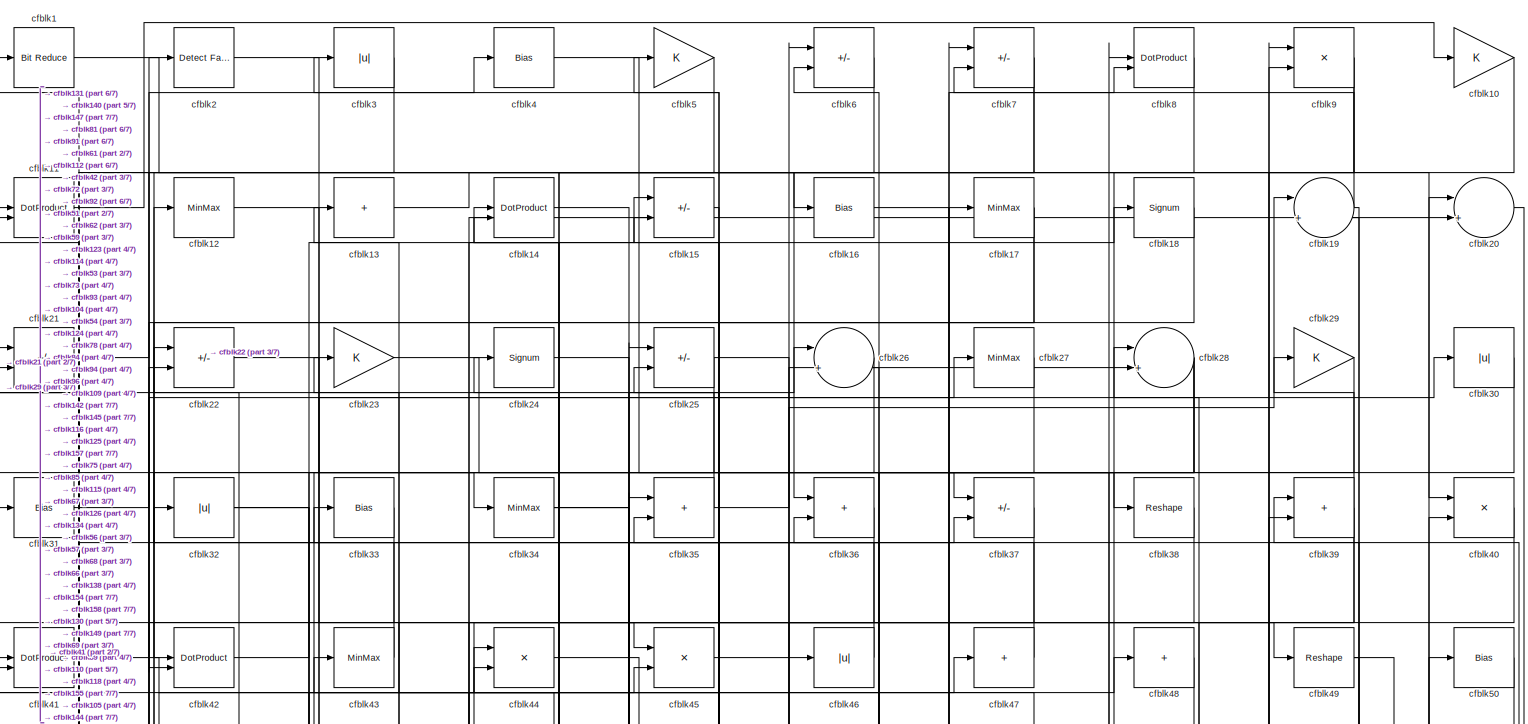
[diagram: root canvas - part 1/7, full width, top band]
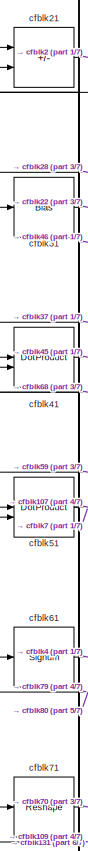
[diagram: root canvas - part 2/7, top left region]
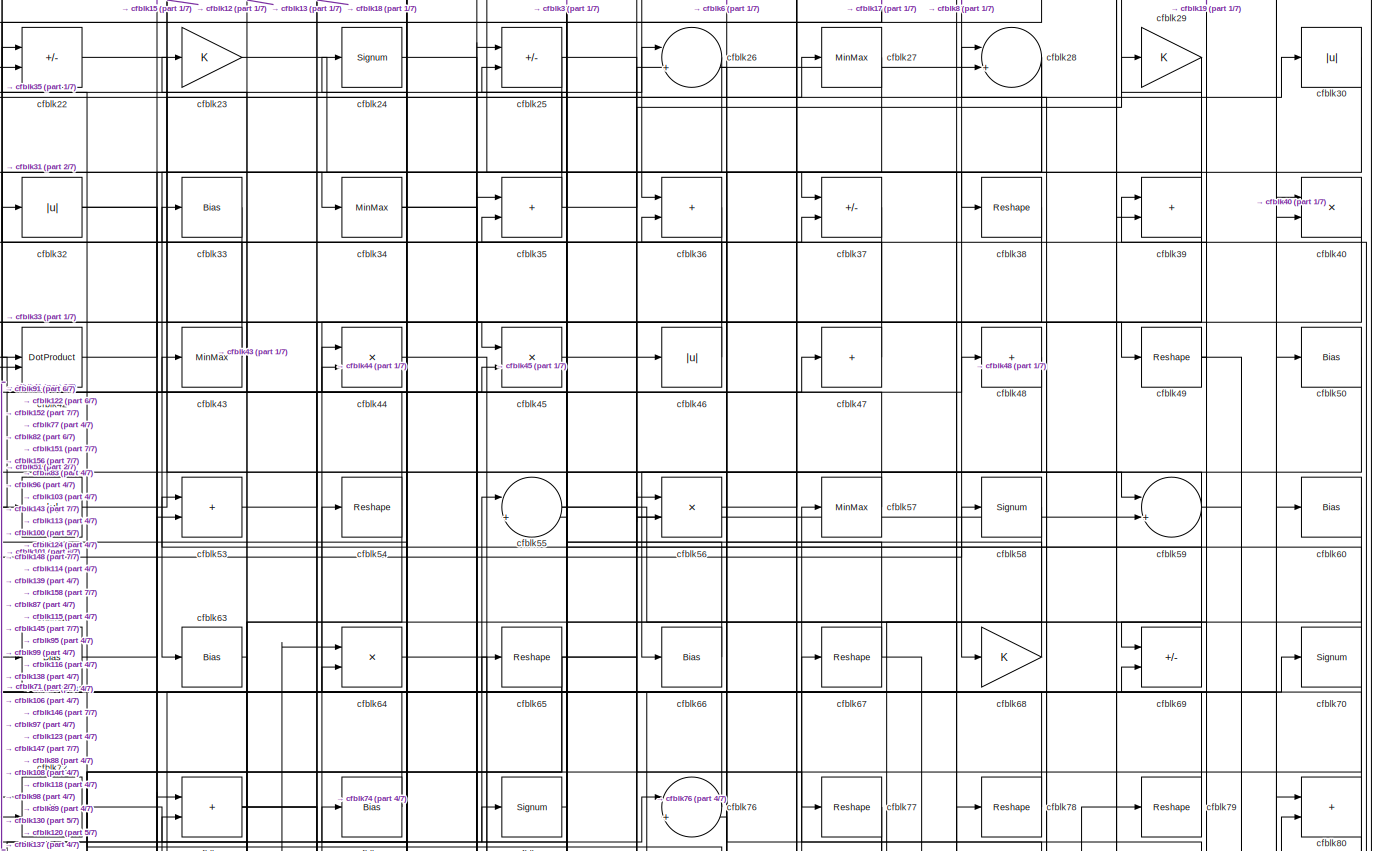
[diagram: root canvas - part 3/7, full width, top band]
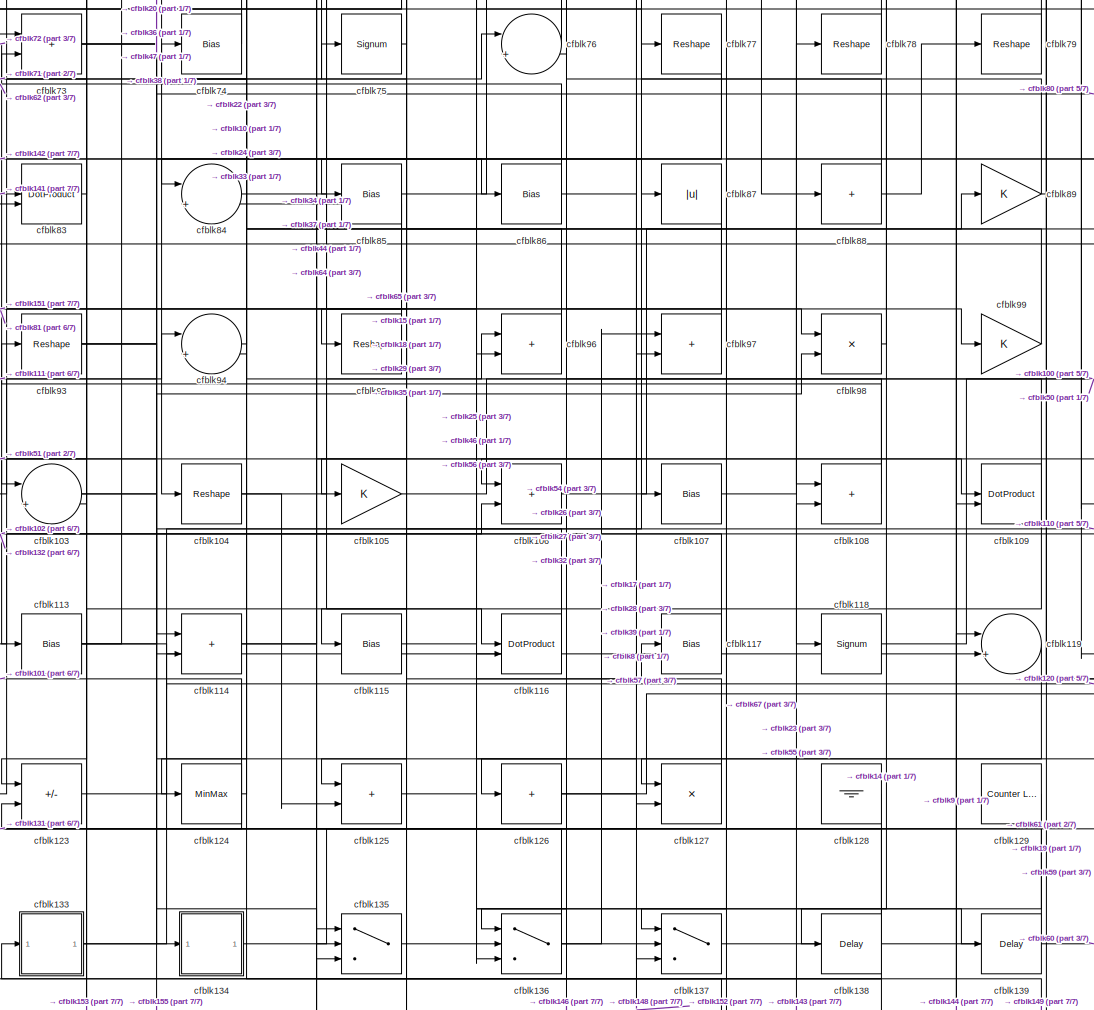
[diagram: root canvas - part 4/7, central region]
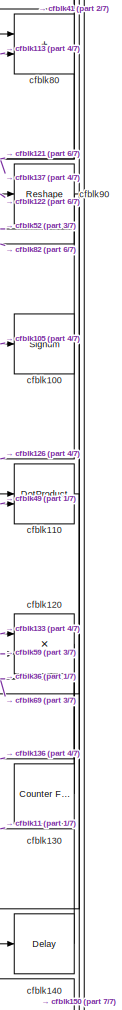
[diagram: root canvas - part 5/7, middle right region]
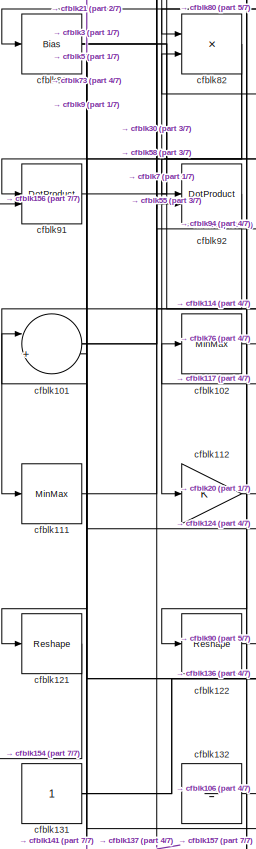
[diagram: root canvas - part 6/7, bottom left region]
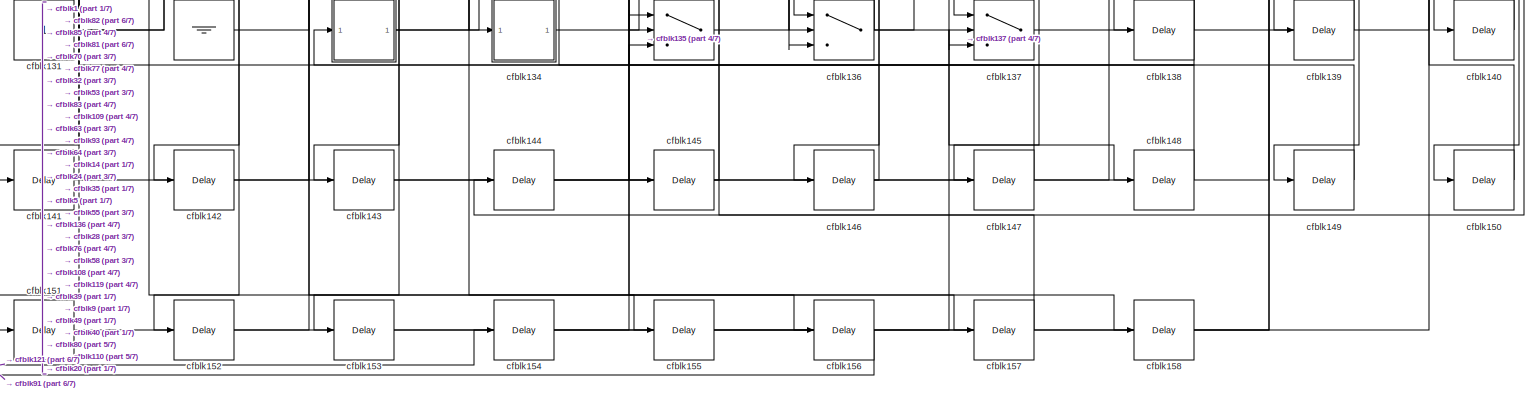
[diagram: root canvas - part 7/7, full width, bottom band]
MODEL slx_b8124399fed0
KIND model
CONFIG AbsTol = auto
CONFIG EnableMultiTasking = off
CONFIG FixedStep = auto
CONFIG MaxStep = auto
CONFIG MinStep = auto
CONFIG RelTol = 1e-3
CONFIG SampleTimeConstraint = Unconstrained
CONFIG SolverName = VariableStepAuto
CONFIG StartTime = 0.0
CONFIG StopTime = 10.0
BLOCK [Reference] cfblk1  REF=hdlsllib/Logic and Bit
Operations/Bit Reduce
  SourceBlock = hdlsllib/Logic and Bit\nOperations/Bit Reduce
  SourceType = Bit Reduce
BLOCK [Gain] cfblk10
BLOCK [Signum] cfblk100
BLOCK [Sum] cfblk101
  Inputs = |++
BLOCK [MinMax] cfblk102
BLOCK [Sum] cfblk103
  Inputs = |++
BLOCK [Reshape] cfblk104
BLOCK [Gain] cfblk105
BLOCK [Sum] cfblk106
  IconShape = rectangular
BLOCK [Bias] cfblk107
  Bias = 0.0
  SaturateOnIntegerOverflow = off
BLOCK [Sum] cfblk108
  IconShape = rectangular
BLOCK [DotProduct] cfblk109
  OutDataTypeStr = Inherit: Inherit via internal rule
BLOCK [DotProduct] cfblk11
  OutDataTypeStr = Inherit: Inherit via internal rule
BLOCK [DotProduct] cfblk110
  OutDataTypeStr = Inherit: Inherit via internal rule
BLOCK [MinMax] cfblk111
BLOCK [Gain] cfblk112
BLOCK [Bias] cfblk113
  Bias = 0.0
  SaturateOnIntegerOverflow = off
BLOCK [Sum] cfblk114
  IconShape = rectangular
BLOCK [Bias] cfblk115
  Bias = 0.0
  SaturateOnIntegerOverflow = off
BLOCK [DotProduct] cfblk116
  OutDataTypeStr = Inherit: Inherit via internal rule
BLOCK [Bias] cfblk117
  Bias = 0.0
  SaturateOnIntegerOverflow = off
BLOCK [Signum] cfblk118
BLOCK [Sum] cfblk119
  Inputs = |++
BLOCK [MinMax] cfblk12
BLOCK [Product] cfblk120
  Inputs = */
  RndMeth = Zero
  SaturateOnIntegerOverflow = on
BLOCK [Reshape] cfblk121
BLOCK [Reshape] cfblk122
BLOCK [Sum] cfblk123
  IconShape = rectangular
  Inputs = +-
BLOCK [MinMax] cfblk124
BLOCK [Sum] cfblk125
  IconShape = rectangular
BLOCK [Sum] cfblk126
  IconShape = rectangular
  Inputs = +
BLOCK [Product] cfblk127
  Inputs = */
  RndMeth = Zero
  SaturateOnIntegerOverflow = on
BLOCK [Ground] cfblk128
BLOCK [Reference] cfblk129  REF=hdlsllib/Sources/Counter
Limited
  SourceBlock = hdlsllib/Sources/Counter\nLimited
  SourceType = Counter Limited
BLOCK [Sum] cfblk13
  IconShape = rectangular
  Inputs = +
BLOCK [Reference] cfblk130  REF=hdlsllib/Sources/Counter
Free-Running
  SourceBlock = hdlsllib/Sources/Counter\nFree-Running
  SourceType = Counter Free-Running
BLOCK [Constant] cfblk131
  SampleTime = -1
BLOCK [Ground] cfblk132
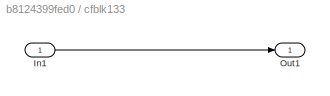
BLOCK [SubSystem] cfblk133
  LibrarySourceBlock = hdlsllib/Ports &\nSubsystems/Subsystem
BLOCK [Inport] cfblk133/In1
BLOCK [Outport] cfblk133/Out1
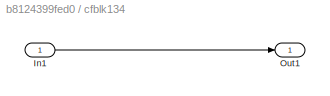
BLOCK [SubSystem] cfblk134
  LibrarySourceBlock = hdlsllib/Ports &\nSubsystems/Subsystem
BLOCK [Inport] cfblk134/In1
BLOCK [Outport] cfblk134/Out1
BLOCK [Switch] cfblk135
  InputSameDT = off
  SaturateOnIntegerOverflow = off
BLOCK [Switch] cfblk136
  InputSameDT = off
  SaturateOnIntegerOverflow = off
BLOCK [Switch] cfblk137
  InputSameDT = off
  SaturateOnIntegerOverflow = off
BLOCK [Delay] cfblk138
  InputPortMap = u0
  SampleTime = 1
BLOCK [Delay] cfblk139
  InputPortMap = u0
  SampleTime = 1
BLOCK [DotProduct] cfblk14
  OutDataTypeStr = Inherit: Inherit via internal rule
BLOCK [Delay] cfblk140
  InputPortMap = u0
  SampleTime = 1
BLOCK [Delay] cfblk141
  InputPortMap = u0
  SampleTime = 1
BLOCK [Delay] cfblk142
  InputPortMap = u0
  SampleTime = 1
BLOCK [Delay] cfblk143
  InputPortMap = u0
  SampleTime = 1
BLOCK [Delay] cfblk144
  InputPortMap = u0
  SampleTime = 1
BLOCK [Delay] cfblk145
  InputPortMap = u0
  SampleTime = 1
BLOCK [Delay] cfblk146
  InputPortMap = u0
  SampleTime = 1
BLOCK [Delay] cfblk147
  InputPortMap = u0
  SampleTime = 1
BLOCK [Delay] cfblk148
  InputPortMap = u0
  SampleTime = 1
BLOCK [Delay] cfblk149
  InputPortMap = u0
  SampleTime = 1
BLOCK [Sum] cfblk15
  IconShape = rectangular
  Inputs = +-
BLOCK [Delay] cfblk150
  InputPortMap = u0
  SampleTime = 1
BLOCK [Delay] cfblk151
  InputPortMap = u0
  SampleTime = 1
BLOCK [Delay] cfblk152
  InputPortMap = u0
  SampleTime = 1
BLOCK [Delay] cfblk153
  InputPortMap = u0
  SampleTime = 1
BLOCK [Delay] cfblk154
  InputPortMap = u0
  SampleTime = 1
BLOCK [Delay] cfblk155
  InputPortMap = u0
  SampleTime = 1
BLOCK [Delay] cfblk156
  InputPortMap = u0
  SampleTime = 1
BLOCK [Delay] cfblk157
  InputPortMap = u0
  SampleTime = 1
BLOCK [Delay] cfblk158
  InputPortMap = u0
  SampleTime = 1
BLOCK [Bias] cfblk16
  Bias = 0.0
  SaturateOnIntegerOverflow = off
BLOCK [MinMax] cfblk17
BLOCK [Signum] cfblk18
BLOCK [Sum] cfblk19
  Inputs = |++
BLOCK [Reference] cfblk2  REF=hdlsllib/Logic and Bit
Operations/Detect Fall
Nonpositive
  SourceBlock = hdlsllib/Logic and Bit\nOperations/Detect Fall\nNonpositive
  SourceType = Detect Fall Nonpositive
BLOCK [Sum] cfblk20
  Inputs = |++
BLOCK [Sum] cfblk21
  IconShape = rectangular
  Inputs = +-
BLOCK [Sum] cfblk22
  IconShape = rectangular
  Inputs = +-
BLOCK [Gain] cfblk23
BLOCK [Signum] cfblk24
BLOCK [Sum] cfblk25
  IconShape = rectangular
  Inputs = +-
BLOCK [Sum] cfblk26
  Inputs = |++
BLOCK [MinMax] cfblk27
BLOCK [Sum] cfblk28
  Inputs = |++
BLOCK [Gain] cfblk29
BLOCK [Abs] cfblk3
  SaturateOnIntegerOverflow = off
BLOCK [Abs] cfblk30
  SaturateOnIntegerOverflow = off
BLOCK [Bias] cfblk31
  Bias = 0.0
  SaturateOnIntegerOverflow = off
BLOCK [Abs] cfblk32
  SaturateOnIntegerOverflow = off
BLOCK [Bias] cfblk33
  Bias = 0.0
  SaturateOnIntegerOverflow = off
BLOCK [MinMax] cfblk34
BLOCK [Sum] cfblk35
  IconShape = rectangular
BLOCK [Sum] cfblk36
  IconShape = rectangular
BLOCK [Sum] cfblk37
  IconShape = rectangular
  Inputs = +-
BLOCK [Reshape] cfblk38
BLOCK [Sum] cfblk39
  IconShape = rectangular
BLOCK [Bias] cfblk4
  Bias = 0.0
  SaturateOnIntegerOverflow = off
BLOCK [Product] cfblk40
  Inputs = */
  RndMeth = Zero
  SaturateOnIntegerOverflow = on
BLOCK [DotProduct] cfblk41
  OutDataTypeStr = Inherit: Inherit via internal rule
BLOCK [DotProduct] cfblk42
  OutDataTypeStr = Inherit: Inherit via internal rule
BLOCK [MinMax] cfblk43
BLOCK [Product] cfblk44
  Inputs = */
  RndMeth = Zero
  SaturateOnIntegerOverflow = on
BLOCK [Product] cfblk45
  Inputs = */
  RndMeth = Zero
  SaturateOnIntegerOverflow = on
BLOCK [Abs] cfblk46
  SaturateOnIntegerOverflow = off
BLOCK [Sum] cfblk47
  IconShape = rectangular
  Inputs = +
BLOCK [Sum] cfblk48
  IconShape = rectangular
  Inputs = +
BLOCK [Reshape] cfblk49
BLOCK [Gain] cfblk5
BLOCK [Bias] cfblk50
  Bias = 0.0
  SaturateOnIntegerOverflow = off
BLOCK [DotProduct] cfblk51
  OutDataTypeStr = Inherit: Inherit via internal rule
BLOCK [Abs] cfblk52
  SaturateOnIntegerOverflow = off
BLOCK [Sum] cfblk53
  IconShape = rectangular
BLOCK [Reshape] cfblk54
BLOCK [Sum] cfblk55
  Inputs = |++
BLOCK [Product] cfblk56
  Inputs = */
  RndMeth = Zero
  SaturateOnIntegerOverflow = on
BLOCK [MinMax] cfblk57
BLOCK [Signum] cfblk58
BLOCK [Sum] cfblk59
  Inputs = |++
BLOCK [Sum] cfblk6
  IconShape = rectangular
  Inputs = +-
BLOCK [Bias] cfblk60
  Bias = 0.0
  SaturateOnIntegerOverflow = off
BLOCK [Signum] cfblk61
BLOCK [Bias] cfblk62
  Bias = 0.0
  SaturateOnIntegerOverflow = off
BLOCK [Bias] cfblk63
  Bias = 0.0
  SaturateOnIntegerOverflow = off
BLOCK [Product] cfblk64
  Inputs = */
  RndMeth = Zero
  SaturateOnIntegerOverflow = on
BLOCK [Reshape] cfblk65
BLOCK [Bias] cfblk66
  Bias = 0.0
  SaturateOnIntegerOverflow = off
BLOCK [Reshape] cfblk67
BLOCK [Gain] cfblk68
BLOCK [Sum] cfblk69
  IconShape = rectangular
  Inputs = +-
BLOCK [Sum] cfblk7
  IconShape = rectangular
  Inputs = +-
BLOCK [Signum] cfblk70
BLOCK [Reshape] cfblk71
BLOCK [Product] cfblk72
  Inputs = */
  RndMeth = Zero
  SaturateOnIntegerOverflow = on
BLOCK [Sum] cfblk73
  IconShape = rectangular
BLOCK [Bias] cfblk74
  Bias = 0.0
  SaturateOnIntegerOverflow = off
BLOCK [Signum] cfblk75
BLOCK [Sum] cfblk76
  Inputs = |++
BLOCK [Reshape] cfblk77
BLOCK [Reshape] cfblk78
BLOCK [Reshape] cfblk79
BLOCK [DotProduct] cfblk8
  OutDataTypeStr = Inherit: Inherit via internal rule
BLOCK [Sum] cfblk80
  IconShape = rectangular
BLOCK [Bias] cfblk81
  Bias = 0.0
  SaturateOnIntegerOverflow = off
BLOCK [Product] cfblk82
  Inputs = */
  RndMeth = Zero
  SaturateOnIntegerOverflow = on
BLOCK [DotProduct] cfblk83
  OutDataTypeStr = Inherit: Inherit via internal rule
BLOCK [Sum] cfblk84
  Inputs = |++
BLOCK [Bias] cfblk85
  Bias = 0.0
  SaturateOnIntegerOverflow = off
BLOCK [Bias] cfblk86
  Bias = 0.0
  SaturateOnIntegerOverflow = off
BLOCK [Abs] cfblk87
  SaturateOnIntegerOverflow = off
BLOCK [Sum] cfblk88
  IconShape = rectangular
  Inputs = +
BLOCK [Gain] cfblk89
BLOCK [Product] cfblk9
  Inputs = */
  RndMeth = Zero
  SaturateOnIntegerOverflow = on
BLOCK [Reshape] cfblk90
BLOCK [DotProduct] cfblk91
  OutDataTypeStr = Inherit: Inherit via internal rule
BLOCK [DotProduct] cfblk92
  OutDataTypeStr = Inherit: Inherit via internal rule
BLOCK [Reshape] cfblk93
BLOCK [Sum] cfblk94
  Inputs = |++
BLOCK [Reshape] cfblk95
BLOCK [Sum] cfblk96
  IconShape = rectangular
BLOCK [Sum] cfblk97
  IconShape = rectangular
BLOCK [Product] cfblk98
  Inputs = */
  RndMeth = Zero
  SaturateOnIntegerOverflow = on
BLOCK [Gain] cfblk99
NET cfblk100:1 -> cfblk126:1, cfblk52:1
NET cfblk101:1 -> cfblk30:1, cfblk58:1
LINE cfblk102:1 -> cfblk76:1
NET cfblk103:1 -> cfblk134:1, cfblk98:2
NET cfblk104:1 -> cfblk125:2, cfblk96:1
LINE cfblk105:1 -> cfblk100:1
LINE cfblk106:1 -> cfblk89:1
LINE cfblk107:1 -> cfblk78:1
NET cfblk108:1 -> cfblk26:2, cfblk93:1
NET cfblk109:1 -> cfblk153:1, cfblk71:1
LINE cfblk10:1 -> cfblk84:1
LINE cfblk110:1 -> cfblk150:1
LINE cfblk111:1 -> cfblk94:1
LINE cfblk112:1 -> cfblk20:1
NET cfblk113:1 -> cfblk119:2, cfblk64:1, cfblk80:2
NET cfblk114:1 -> cfblk26:1, cfblk37:2
LINE cfblk115:1 -> cfblk46:1
LINE cfblk116:1 -> cfblk15:1
LINE cfblk117:1 -> cfblk102:1
LINE cfblk118:1 -> cfblk50:1
LINE cfblk119:1 -> cfblk127:1
LINE cfblk11:1 -> cfblk10:1
LINE cfblk120:1 -> cfblk136:3
LINE cfblk121:1 -> cfblk154:1
LINE cfblk122:1 -> cfblk90:1
LINE cfblk123:1 -> cfblk57:1
NET cfblk124:1 -> cfblk101:2, cfblk123:2, cfblk24:1
LINE cfblk125:1 -> cfblk139:1
NET cfblk126:1 -> cfblk39:1, cfblk8:2
LINE cfblk127:1 -> cfblk75:1
LINE cfblk128:1 -> cfblk133:1
LINE cfblk129:1 -> cfblk136:2
LINE cfblk12:1 -> cfblk59:1
NET cfblk130:1 -> cfblk36:2, cfblk69:2
NET cfblk131:1 -> cfblk21:1, cfblk73:1, cfblk9:2
LINE cfblk132:1 -> cfblk106:2
LINE cfblk133/In1:1 -> cfblk133/Out1:1
NET cfblk133:1 -> cfblk110:1, cfblk120:1
LINE cfblk134/In1:1 -> cfblk134/Out1:1
LINE cfblk134:1 -> cfblk17:1
LINE cfblk135:1 -> cfblk117:1
NET cfblk136:1 -> cfblk101:1, cfblk148:1, cfblk73:2, cfblk97:1
LINE cfblk137:1 -> cfblk60:1
LINE cfblk138:1 -> cfblk56:1
LINE cfblk139:1 -> cfblk25:1
LINE cfblk13:1 -> cfblk16:1
LINE cfblk140:1 -> cfblk11:2
LINE cfblk141:1 -> cfblk83:1
LINE cfblk142:1 -> cfblk35:1
LINE cfblk143:1 -> cfblk108:2
LINE cfblk144:1 -> cfblk119:1
LINE cfblk145:1 -> cfblk55:2
LINE cfblk146:1 -> cfblk76:2
LINE cfblk147:1 -> cfblk1:1
LINE cfblk148:1 -> cfblk64:2
LINE cfblk149:1 -> cfblk135:1
LINE cfblk14:1 -> cfblk145:1
LINE cfblk150:1 -> cfblk80:1
LINE cfblk151:1 -> cfblk53:2
LINE cfblk152:1 -> cfblk137:2
LINE cfblk153:1 -> cfblk135:3
LINE cfblk154:1 -> cfblk39:2
LINE cfblk155:1 -> cfblk40:2
LINE cfblk156:1 -> cfblk91:2
LINE cfblk157:1 -> cfblk5:1
LINE cfblk158:1 -> cfblk9:1
LINE cfblk15:1 -> cfblk125:1
LINE cfblk16:1 -> cfblk38:1
NET cfblk17:1 -> cfblk42:2, cfblk72:1
LINE cfblk18:1 -> cfblk85:1
NET cfblk19:1 -> cfblk69:1, cfblk7:2
LINE cfblk1:1 -> cfblk40:1
LINE cfblk20:1 -> cfblk144:1
LINE cfblk21:1 -> cfblk2:1
LINE cfblk22:1 -> cfblk45:1
LINE cfblk23:1 -> cfblk108:1
LINE cfblk24:1 -> cfblk158:1
NET cfblk25:1 -> cfblk116:2, cfblk83:2
LINE cfblk26:1 -> cfblk63:1
LINE cfblk27:1 -> cfblk106:1
NET cfblk28:1 -> cfblk146:1, cfblk31:1, cfblk97:2
LINE cfblk29:1 -> cfblk95:1
LINE cfblk2:1 -> cfblk34:1
LINE cfblk30:1 -> cfblk42:1
LINE cfblk31:1 -> cfblk22:2
NET cfblk32:1 -> cfblk156:1, cfblk96:2
LINE cfblk33:1 -> cfblk72:2
NET cfblk34:1 -> cfblk109:1, cfblk49:1
NET cfblk35:1 -> cfblk11:1, cfblk29:1
LINE cfblk36:1 -> cfblk114:2
LINE cfblk37:1 -> cfblk51:2
LINE cfblk38:1 -> cfblk104:1
NET cfblk39:1 -> cfblk123:1, cfblk138:1, cfblk19:1
LINE cfblk3:1 -> cfblk91:1
LINE cfblk40:1 -> cfblk56:2
LINE cfblk41:1 -> cfblk45:2
LINE cfblk42:1 -> cfblk15:2
LINE cfblk43:1 -> cfblk12:1
LINE cfblk44:1 -> cfblk116:1
LINE cfblk45:1 -> cfblk6:1
LINE cfblk46:1 -> cfblk21:2
LINE cfblk47:1 -> cfblk14:2
LINE cfblk48:1 -> cfblk66:1
NET cfblk49:1 -> cfblk110:2, cfblk149:1
LINE cfblk4:1 -> cfblk37:1
LINE cfblk50:1 -> cfblk105:1
NET cfblk51:1 -> cfblk107:1, cfblk7:1
LINE cfblk52:1 -> cfblk27:1
LINE cfblk53:1 -> cfblk18:1
NET cfblk54:1 -> cfblk103:1, cfblk13:1
NET cfblk55:1 -> cfblk118:1, cfblk59:2
LINE cfblk56:1 -> cfblk48:1
LINE cfblk57:1 -> cfblk43:1
LINE cfblk58:1 -> cfblk147:1
NET cfblk59:1 -> cfblk103:2, cfblk120:2, cfblk51:1
LINE cfblk5:1 -> cfblk81:1
LINE cfblk60:1 -> cfblk115:1
LINE cfblk61:1 -> cfblk4:1
LINE cfblk62:1 -> cfblk44:1
LINE cfblk63:1 -> cfblk143:1
LINE cfblk64:1 -> cfblk87:1
NET cfblk65:1 -> cfblk122:1, cfblk28:2, cfblk77:1, cfblk82:1
LINE cfblk66:1 -> cfblk3:1
NET cfblk67:1 -> cfblk6:2, cfblk88:1
LINE cfblk68:1 -> cfblk41:1
LINE cfblk69:1 -> cfblk25:2
LINE cfblk6:1 -> cfblk36:1
NET cfblk70:1 -> cfblk152:1, cfblk53:1
LINE cfblk71:1 -> cfblk70:1
LINE cfblk72:1 -> cfblk113:1
NET cfblk73:1 -> cfblk127:2, cfblk47:1, cfblk86:1
LINE cfblk74:1 -> cfblk22:1
LINE cfblk75:1 -> cfblk35:2
LINE cfblk76:1 -> cfblk54:1
NET cfblk77:1 -> cfblk142:1, cfblk94:2
LINE cfblk78:1 -> cfblk14:1
LINE cfblk79:1 -> cfblk61:1
NET cfblk7:1 -> cfblk112:1, cfblk92:2
NET cfblk80:1 -> cfblk121:1, cfblk137:1, cfblk41:2
NET cfblk81:1 -> cfblk114:1, cfblk137:3, cfblk157:1
NET cfblk82:1 -> cfblk141:1, cfblk92:1
LINE cfblk83:1 -> cfblk23:1
LINE cfblk84:1 -> cfblk99:1
NET cfblk85:1 -> cfblk151:1, cfblk8:1
NET cfblk86:1 -> cfblk62:1, cfblk98:1
LINE cfblk87:1 -> cfblk136:1
NET cfblk88:1 -> cfblk32:1, cfblk79:1
NET cfblk89:1 -> cfblk19:2, cfblk67:1
LINE cfblk8:1 -> cfblk68:1
NET cfblk90:1 -> cfblk140:1, cfblk82:2
LINE cfblk91:1 -> cfblk55:1
LINE cfblk92:1 -> cfblk111:1
NET cfblk93:1 -> cfblk135:2, cfblk155:1, cfblk20:2
LINE cfblk94:1 -> cfblk44:2
LINE cfblk95:1 -> cfblk84:2
LINE cfblk96:1 -> cfblk33:1
LINE cfblk97:1 -> cfblk74:1
LINE cfblk98:1 -> cfblk28:1
LINE cfblk99:1 -> cfblk65:1
NET cfblk9:1 -> cfblk109:2, cfblk124:1
note: NET lines group one-source signal fan-out (src -> all destinations, sorted); 1:1 wires keep LINE
